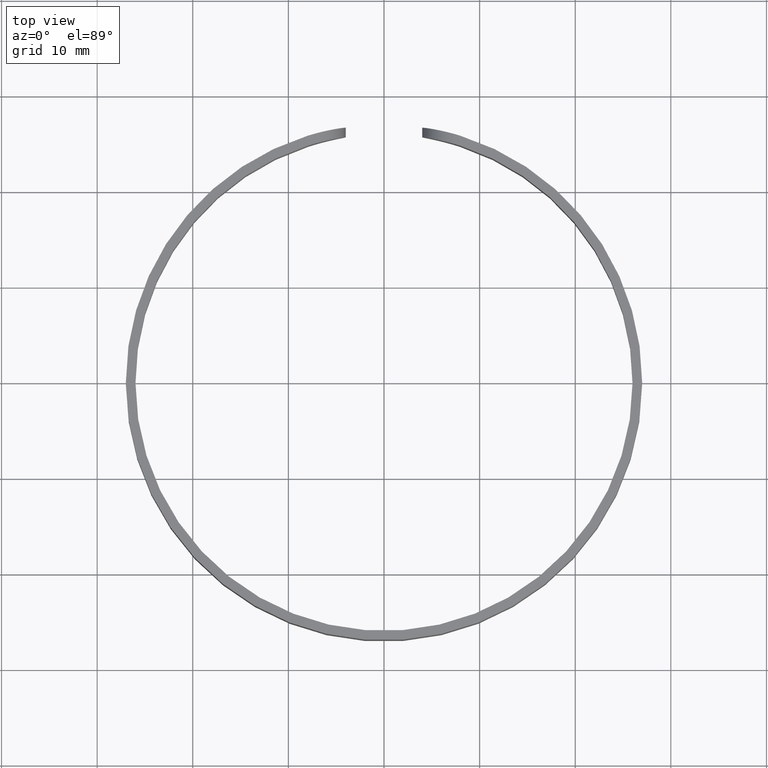
[diagram: clean part render]
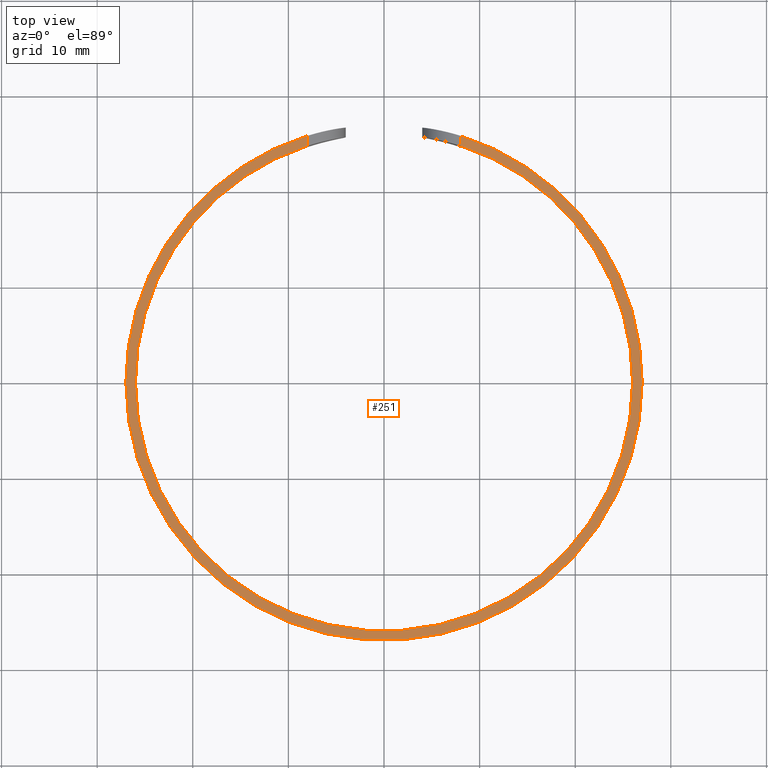
[diagram: same view with one face highlighted and labeled with its STEP entity id]
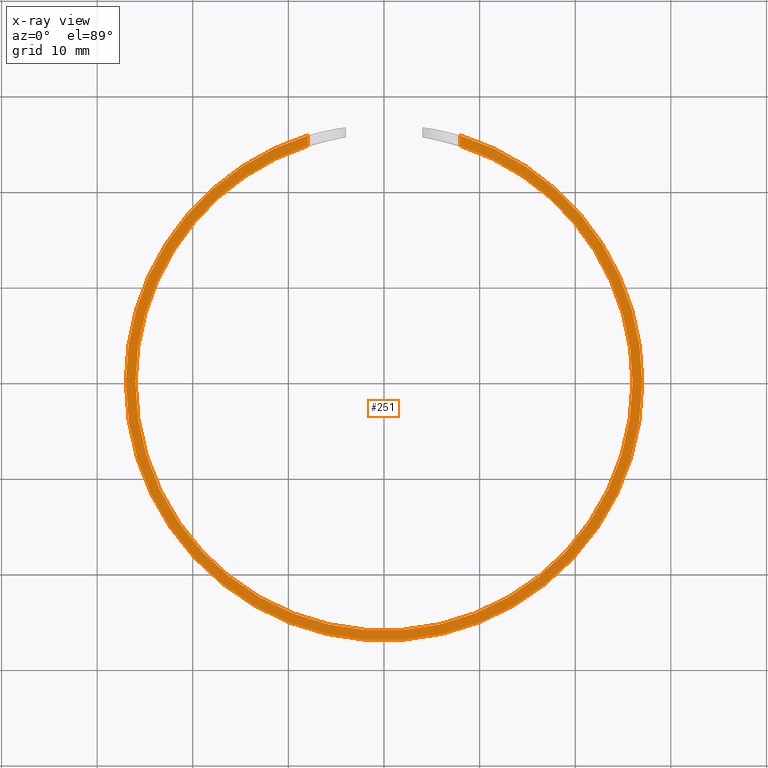
[diagram: x-ray of the same camera — body ghosted, the highlighted face saturated]
A machine part, top view. The second image highlights one B-rep face of the part: STEP entity #251.
The next image is the same camera in x-ray: the body ghosted, the highlighted face saturated — about 0% of this face is hidden behind the body in this view.
In plain terms, the highlighted planar face has unit normal (0, 0, 1).
Its self-contained STEP definition (entity closure, byte-faithful):
#10 = ORIENTED_EDGE ( 'NONE', *, *, #355, .T. ) ;
#20 = CARTESIAN_POINT ( 'NONE',  ( -8.000000000000010700, 24.73863375370595500, 7.799999999999999800 ) ) ;
#39 = VECTOR ( 'NONE', #82, 1000.000000000000000 ) ;
#40 = VERTEX_POINT ( 'NONE', #59 ) ;
#48 = EDGE_CURVE ( 'NONE', #434, #40, #399, .T. ) ;
#59 = CARTESIAN_POINT ( 'NONE',  ( 27.00000000000000000, 3.306546357697853700E-015, 7.799999999999999800 ) ) ;
#67 = ORIENTED_EDGE ( 'NONE', *, *, #48, .T. ) ;
#69 = EDGE_CURVE ( 'NONE', #512, #324, #410, .T. ) ;
#77 = CARTESIAN_POINT ( 'NONE',  ( 0.0000000000000000000, 0.0000000000000000000, 7.799999999999999800 ) ) ;
#81 = DIRECTION ( 'NONE',  ( 1.000000000000000000, 0.0000000000000000000, -0.0000000000000000000 ) ) ;
#82 = DIRECTION ( 'NONE',  ( 5.144521306887717300E-015, 1.000000000000000000, -0.0000000000000000000 ) ) ;
#87 = LINE ( 'NONE', #473, #39 ) ;
#91 = DIRECTION ( 'NONE',  ( 1.000000000000000000, 0.0000000000000000000, 0.0000000000000000000 ) ) ;
#96 = VERTEX_POINT ( 'NONE', #20 ) ;
#101 = DIRECTION ( 'NONE',  ( -0.0000000000000000000, -0.0000000000000000000, -1.000000000000000000 ) ) ;
#105 = CARTESIAN_POINT ( 'NONE',  ( 0.0000000000000000000, 0.0000000000000000000, 7.799999999999999800 ) ) ;
#111 = AXIS2_PLACEMENT_3D ( 'NONE', #641, #235, #91 ) ;
#120 = PLANE ( 'NONE',  #437 ) ;
#123 = CARTESIAN_POINT ( 'NONE',  ( -8.000000000000007100, 25.78759391645525800, 7.799999999999999800 ) ) ;
#134 = CARTESIAN_POINT ( 'NONE',  ( 0.0000000000000000000, 0.0000000000000000000, 7.799999999999999800 ) ) ;
#138 = CIRCLE ( 'NONE', #237, 25.99999999999999600 ) ;
#144 = ORIENTED_EDGE ( 'NONE', *, *, #513, .T. ) ;
#168 = CARTESIAN_POINT ( 'NONE',  ( 7.999999999999986700, 24.73863375370596200, 7.799999999999999800 ) ) ;
#182 = CARTESIAN_POINT ( 'NONE',  ( 0.0000000000000000000, 0.0000000000000000000, 7.799999999999999800 ) ) ;
#184 = DIRECTION ( 'NONE',  ( -0.0000000000000000000, -0.0000000000000000000, -1.000000000000000000 ) ) ;
#212 = DIRECTION ( 'NONE',  ( 0.0000000000000000000, 0.0000000000000000000, 1.000000000000000000 ) ) ;
#214 = AXIS2_PLACEMENT_3D ( 'NONE', #105, #352, #541 ) ;
#216 = DIRECTION ( 'NONE',  ( 1.000000000000000000, 0.0000000000000000000, 0.0000000000000000000 ) ) ;
#219 = CIRCLE ( 'NONE', #111, 27.00000000000000000 ) ;
#221 = VERTEX_POINT ( 'NONE', #624 ) ;
#235 = DIRECTION ( 'NONE',  ( 0.0000000000000000000, 0.0000000000000000000, 1.000000000000000000 ) ) ;
#237 = AXIS2_PLACEMENT_3D ( 'NONE', #182, #184, #538 ) ;
#238 = CARTESIAN_POINT ( 'NONE',  ( 25.99999999999999600, 3.184081677783117800E-015, 7.799999999999999800 ) ) ;
#251 = ADVANCED_FACE ( 'NONE', ( #517 ), #120, .T. ) ;
#263 = ORIENTED_EDGE ( 'NONE', *, *, #431, .T. ) ;
#273 = VERTEX_POINT ( 'NONE', #123 ) ;
#281 = DIRECTION ( 'NONE',  ( -0.0000000000000000000, -0.0000000000000000000, -1.000000000000000000 ) ) ;
#287 = EDGE_LOOP ( 'NONE', ( #518, #67, #144, #620, #433, #263, #634, #10 ) ) ;
#289 = EDGE_CURVE ( 'NONE', #273, #434, #373, .T. ) ;
#298 = AXIS2_PLACEMENT_3D ( 'NONE', #603, #101, #401 ) ;
#300 = CARTESIAN_POINT ( 'NONE',  ( 7.999999999999994700, 25.69046515733021300, 7.799999999999999800 ) ) ;
#314 = VECTOR ( 'NONE', #547, 1000.000000000000000 ) ;
#324 = VERTEX_POINT ( 'NONE', #168 ) ;
#330 = DIRECTION ( 'NONE',  ( 0.0000000000000000000, 0.0000000000000000000, 1.000000000000000000 ) ) ;
#332 = EDGE_CURVE ( 'NONE', #221, #96, #587, .T. ) ;
#335 = DIRECTION ( 'NONE',  ( 1.000000000000000000, 0.0000000000000000000, 0.0000000000000000000 ) ) ;
#352 = DIRECTION ( 'NONE',  ( 0.0000000000000000000, 0.0000000000000000000, 1.000000000000000000 ) ) ;
#355 = EDGE_CURVE ( 'NONE', #96, #273, #87, .T. ) ;
#373 = CIRCLE ( 'NONE', #447, 27.00000000000000000 ) ;
#378 = CARTESIAN_POINT ( 'NONE',  ( 0.0000000000000000000, 0.0000000000000000000, 7.799999999999999800 ) ) ;
#399 = CIRCLE ( 'NONE', #214, 27.00000000000000000 ) ;
#401 = DIRECTION ( 'NONE',  ( 1.000000000000000000, 0.0000000000000000000, 0.0000000000000000000 ) ) ;
#410 = LINE ( 'NONE', #300, #314 ) ;
#431 = EDGE_CURVE ( 'NONE', #529, #221, #138, .T. ) ;
#433 = ORIENTED_EDGE ( 'NONE', *, *, #560, .T. ) ;
#434 = VERTEX_POINT ( 'NONE', #642 ) ;
#437 = AXIS2_PLACEMENT_3D ( 'NONE', #77, #330, #81 ) ;
#447 = AXIS2_PLACEMENT_3D ( 'NONE', #378, #212, #216 ) ;
#470 = AXIS2_PLACEMENT_3D ( 'NONE', #134, #281, #335 ) ;
#473 = CARTESIAN_POINT ( 'NONE',  ( -8.000000000000000000, 26.70205984563740000, 7.799999999999999800 ) ) ;
#490 = CIRCLE ( 'NONE', #298, 25.99999999999999600 ) ;
#496 = CARTESIAN_POINT ( 'NONE',  ( 7.999999999999994700, 25.78759391645525400, 7.799999999999999800 ) ) ;
#512 = VERTEX_POINT ( 'NONE', #496 ) ;
#513 = EDGE_CURVE ( 'NONE', #40, #512, #219, .T. ) ;
#517 = FACE_OUTER_BOUND ( 'NONE', #287, .T. ) ;
#518 = ORIENTED_EDGE ( 'NONE', *, *, #289, .T. ) ;
#529 = VERTEX_POINT ( 'NONE', #238 ) ;
#538 = DIRECTION ( 'NONE',  ( 1.000000000000000000, 0.0000000000000000000, 0.0000000000000000000 ) ) ;
#541 = DIRECTION ( 'NONE',  ( 1.000000000000000000, 0.0000000000000000000, 0.0000000000000000000 ) ) ;
#547 = DIRECTION ( 'NONE',  ( -8.574202178146136600E-015, -1.000000000000000000, 0.0000000000000000000 ) ) ;
#560 = EDGE_CURVE ( 'NONE', #324, #529, #490, .T. ) ;
#587 = CIRCLE ( 'NONE', #470, 25.99999999999999600 ) ;
#603 = CARTESIAN_POINT ( 'NONE',  ( 0.0000000000000000000, 0.0000000000000000000, 7.799999999999999800 ) ) ;
#620 = ORIENTED_EDGE ( 'NONE', *, *, #69, .T. ) ;
#624 = CARTESIAN_POINT ( 'NONE',  ( -25.99999999999999600, 0.0000000000000000000, 7.799999999999999800 ) ) ;
#634 = ORIENTED_EDGE ( 'NONE', *, *, #332, .T. ) ;
#641 = CARTESIAN_POINT ( 'NONE',  ( 0.0000000000000000000, 0.0000000000000000000, 7.799999999999999800 ) ) ;
#642 = CARTESIAN_POINT ( 'NONE',  ( -27.00000000000000000, 0.0000000000000000000, 7.799999999999999800 ) ) ;